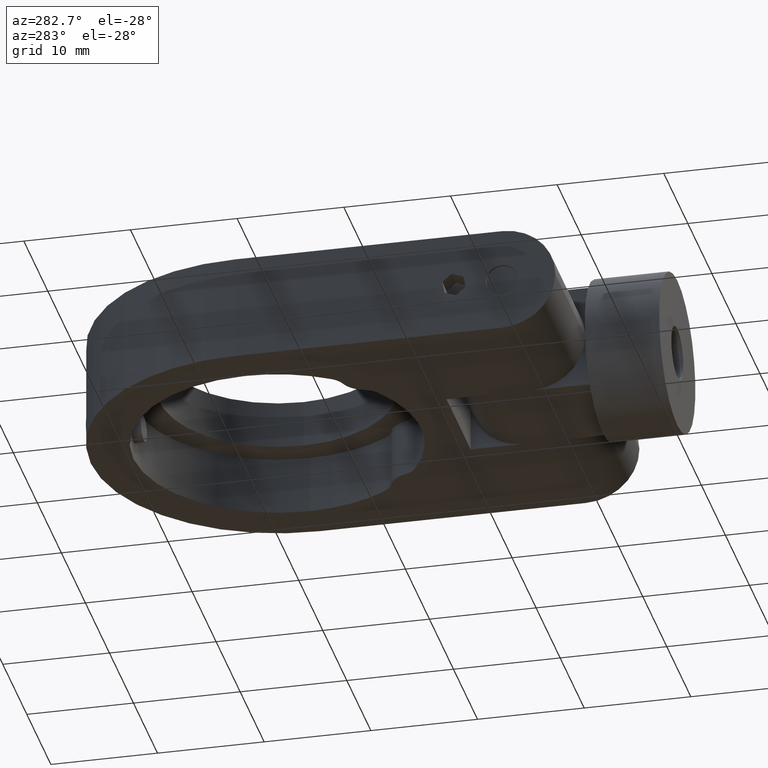
[diagram: clean part render]
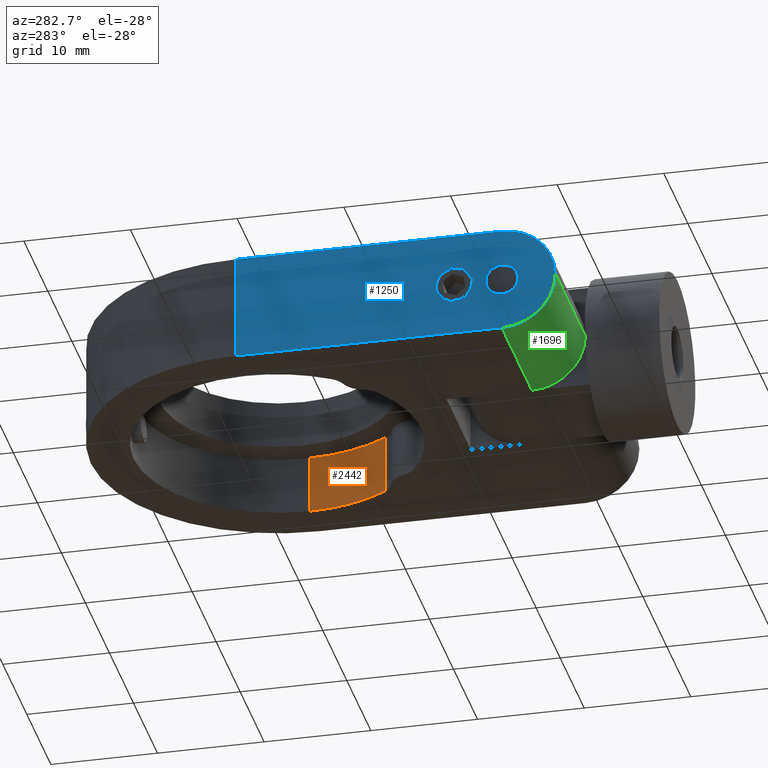
[diagram: same view with three faces highlighted in distinct colors, each labeled with its STEP entity id]
A machine part, auxiliary view with three faces highlighted in distinct colors.
Their STEP definitions:

[orange] entity #2442 — the highlighted cylindrical surface (partial cylindrical patch) has radius 13.5 mm, axis along (-0, -0, -1).
#36 = VERTEX_POINT ( 'NONE', #3137 ) ;
#47 = CARTESIAN_POINT ( 'NONE',  ( 11.14091869797605700, 29.87570130667181100, 0.5000000000000186500 ) ) ;
#256 = DIRECTION ( 'NONE',  ( -1.000000000000000000, 0.0000000000000000000, 1.044046536467522800E-016 ) ) ;
#463 = VERTEX_POINT ( 'NONE', #2863 ) ;
#523 = CIRCLE ( 'NONE', #1346, 13.50000000000000000 ) ;
#597 = VERTEX_POINT ( 'NONE', #1764 ) ;
#634 = VECTOR ( 'NONE', #3685, 1000.000000000000000 ) ;
#709 = EDGE_CURVE ( 'NONE', #597, #1086, #523, .T. ) ;
#810 = ORIENTED_EDGE ( 'NONE', *, *, #3263, .T. ) ;
#834 = LINE ( 'NONE', #2987, #634 ) ;
#955 = VECTOR ( 'NONE', #3284, 1000.000000000000000 ) ;
#1086 = VERTEX_POINT ( 'NONE', #3244 ) ;
#1165 = FACE_OUTER_BOUND ( 'NONE', #1698, .T. ) ;
#1320 = DIRECTION ( 'NONE',  ( -1.057139645054936500E-016, -1.718301073974566900E-032, -1.000000000000000000 ) ) ;
#1346 = AXIS2_PLACEMENT_3D ( 'NONE', #3092, #1320, #2438 ) ;
#1565 = CARTESIAN_POINT ( 'NONE',  ( -2.415325656008640800E-015, 37.50000000000009900, 0.5000000000000195400 ) ) ;
#1691 = ORIENTED_EDGE ( 'NONE', *, *, #3367, .T. ) ;
#1698 = EDGE_LOOP ( 'NONE', ( #2051, #1691, #3710, #810 ) ) ;
#1728 = CYLINDRICAL_SURFACE ( 'NONE', #3482, 13.50000000000000000 ) ;
#1764 = CARTESIAN_POINT ( 'NONE',  ( 13.49999999999999600, 37.50000000000010700, -4.999999999999982200 ) ) ;
#2033 = DIRECTION ( 'NONE',  ( -1.057139645054936500E-016, -1.718301073974566900E-032, -1.000000000000000000 ) ) ;
#2051 = ORIENTED_EDGE ( 'NONE', *, *, #3139, .F. ) ;
#2438 = DIRECTION ( 'NONE',  ( -1.000000000000000000, 0.0000000000000000000, 1.284980352575412700E-016 ) ) ;
#2442 = ADVANCED_FACE ( 'NONE', ( #1165 ), #1728, .F. ) ;
#2456 = DIRECTION ( 'NONE',  ( -1.057139645054936500E-016, -1.718301073974566900E-032, -1.000000000000000000 ) ) ;
#2611 = AXIS2_PLACEMENT_3D ( 'NONE', #3839, #2033, #256 ) ;
#2863 = CARTESIAN_POINT ( 'NONE',  ( 13.49999999999999800, 37.50000000000010700, 0.5000000000000181000 ) ) ;
#2987 = CARTESIAN_POINT ( 'NONE',  ( 13.49999999999999800, 37.50000000000010700, 0.5000000000000181000 ) ) ;
#3092 = CARTESIAN_POINT ( 'NONE',  ( -2.996752460788856200E-015, 37.50000000000009900, -4.999999999999980500 ) ) ;
#3134 = LINE ( 'NONE', #47, #955 ) ;
#3137 = CARTESIAN_POINT ( 'NONE',  ( 11.14091869797605700, 29.87570130667181400, 0.5000000000000186500 ) ) ;
#3139 = EDGE_CURVE ( 'NONE', #463, #36, #3772, .T. ) ;
#3244 = CARTESIAN_POINT ( 'NONE',  ( 11.14091869797605500, 29.87570130667181400, -4.999999999999982200 ) ) ;
#3263 = EDGE_CURVE ( 'NONE', #1086, #36, #3134, .T. ) ;
#3284 = DIRECTION ( 'NONE',  ( 1.057139645054936500E-016, 1.718301073974566900E-032, 1.000000000000000000 ) ) ;
#3355 = DIRECTION ( 'NONE',  ( -1.000000000000000000, 0.0000000000000000000, 1.044046536467522800E-016 ) ) ;
#3367 = EDGE_CURVE ( 'NONE', #463, #597, #834, .T. ) ;
#3482 = AXIS2_PLACEMENT_3D ( 'NONE', #1565, #2456, #3355 ) ;
#3685 = DIRECTION ( 'NONE',  ( -1.057139645054936500E-016, -1.718301073974566900E-032, -1.000000000000000000 ) ) ;
#3710 = ORIENTED_EDGE ( 'NONE', *, *, #709, .T. ) ;
#3772 = CIRCLE ( 'NONE', #2611, 13.50000000000000000 ) ;
#3839 = CARTESIAN_POINT ( 'NONE',  ( -2.415325656008640800E-015, 37.50000000000009900, 0.5000000000000195400 ) ) ;

[blue] entity #1250 — the highlighted planar face has unit normal (1, 0, -0).
#51 = LINE ( 'NONE', #3466, #2951 ) ;
#108 = VERTEX_POINT ( 'NONE', #733 ) ;
#240 = DIRECTION ( 'NONE',  ( 0.0000000000000000000, 1.000000000000000000, 0.0000000000000000000 ) ) ;
#374 = CARTESIAN_POINT ( 'NONE',  ( -17.50000000000000400, 37.50000000000009900, -4.999999999999978700 ) ) ;
#382 = LINE ( 'NONE', #2308, #3069 ) ;
#387 = VERTEX_POINT ( 'NONE', #1431 ) ;
#404 = DIRECTION ( 'NONE',  ( 0.0000000000000000000, 0.0000000000000000000, 1.000000000000000000 ) ) ;
#527 = ORIENTED_EDGE ( 'NONE', *, *, #1058, .F. ) ;
#563 = CIRCLE ( 'NONE', #1582, 1.649999999999988400 ) ;
#592 = DIRECTION ( 'NONE',  ( -1.000000000000000000, -4.689425563139111100E-017, 1.057139645054936500E-016 ) ) ;
#683 = EDGE_CURVE ( 'NONE', #2302, #1571, #2873, .T. ) ;
#685 = DIRECTION ( 'NONE',  ( -1.000000000000000000, -1.625424873631782800E-016, 1.057139645054936500E-016 ) ) ;
#715 = FACE_BOUND ( 'NONE', #2752, .T. ) ;
#733 = CARTESIAN_POINT ( 'NONE',  ( -17.50000000000000400, 37.50000000000009900, 5.000000000000022200 ) ) ;
#820 = DIRECTION ( 'NONE',  ( 0.0000000000000000000, 0.0000000000000000000, 1.000000000000000000 ) ) ;
#902 = CARTESIAN_POINT ( 'NONE',  ( -17.50000000000000400, 12.50000000000011200, 5.000000000000022200 ) ) ;
#1022 = CIRCLE ( 'NONE', #1470, 5.000000000000000000 ) ;
#1031 = DIRECTION ( 'NONE',  ( 1.000000000000000000, 4.689425563139111100E-017, -1.057139645054936500E-016 ) ) ;
#1042 = AXIS2_PLACEMENT_3D ( 'NONE', #374, #1031, #3126 ) ;
#1058 = EDGE_CURVE ( 'NONE', #1556, #1828, #3111, .T. ) ;
#1081 = EDGE_CURVE ( 'NONE', #2302, #2279, #1859, .T. ) ;
#1139 = CARTESIAN_POINT ( 'NONE',  ( -17.50000000000000400, 37.50000000000009900, -4.999999999999978700 ) ) ;
#1145 = ORIENTED_EDGE ( 'NONE', *, *, #2380, .F. ) ;
#1155 = ORIENTED_EDGE ( 'NONE', *, *, #1674, .T. ) ;
#1195 = DIRECTION ( 'NONE',  ( -1.000000000000000000, -4.689425563139111100E-017, 1.057139645054936500E-016 ) ) ;
#1250 = ADVANCED_FACE ( 'NONE', ( #3651, #715, #2275 ), #2151, .F. ) ;
#1378 = DIRECTION ( 'NONE',  ( 1.057139645054936500E-016, 1.718301073974566900E-032, 1.000000000000000000 ) ) ;
#1414 = CARTESIAN_POINT ( 'NONE',  ( -17.50000000000000400, 7.500000000000103900, 2.168404344971008900E-014 ) ) ;
#1425 = EDGE_CURVE ( 'NONE', #2279, #108, #51, .T. ) ;
#1431 = CARTESIAN_POINT ( 'NONE',  ( -17.50000000000000400, 17.00000000000010700, -1.649999999999966600 ) ) ;
#1470 = AXIS2_PLACEMENT_3D ( 'NONE', #2160, #3036, #2452 ) ;
#1519 = ORIENTED_EDGE ( 'NONE', *, *, #683, .T. ) ;
#1556 = VERTEX_POINT ( 'NONE', #1716 ) ;
#1571 = VERTEX_POINT ( 'NONE', #1414 ) ;
#1582 = AXIS2_PLACEMENT_3D ( 'NONE', #1884, #685, #404 ) ;
#1674 = EDGE_CURVE ( 'NONE', #1571, #3235, #1022, .T. ) ;
#1683 = DIRECTION ( 'NONE',  ( -4.689425563139112300E-017, 1.000000000000000000, -1.222563306441724200E-032 ) ) ;
#1716 = CARTESIAN_POINT ( 'NONE',  ( -17.50000000000000400, 14.00000000000010500, 2.168404344971008900E-014 ) ) ;
#1797 = CARTESIAN_POINT ( 'NONE',  ( -17.50000000000000400, 37.50000000000009900, -4.999999999999978700 ) ) ;
#1810 = CARTESIAN_POINT ( 'NONE',  ( -17.50000000000000400, 12.50000000000011200, -4.999999999999978700 ) ) ;
#1828 = VERTEX_POINT ( 'NONE', #2434 ) ;
#1859 = LINE ( 'NONE', #1139, #2717 ) ;
#1884 = CARTESIAN_POINT ( 'NONE',  ( -17.50000000000000400, 17.00000000000010700, 2.168404344971008900E-014 ) ) ;
#1889 = DIRECTION ( 'NONE',  ( 0.0000000000000000000, -1.000000000000000000, 8.881784197001254300E-016 ) ) ;
#2030 = CARTESIAN_POINT ( 'NONE',  ( -17.50000000000000400, 12.50000000000010500, 2.168404344971008900E-014 ) ) ;
#2103 = CIRCLE ( 'NONE', #3268, 1.499999999999999600 ) ;
#2151 = PLANE ( 'NONE',  #1042 ) ;
#2152 = ORIENTED_EDGE ( 'NONE', *, *, #3862, .F. ) ;
#2160 = CARTESIAN_POINT ( 'NONE',  ( -17.50000000000000400, 12.50000000000010500, 2.168404344971008900E-014 ) ) ;
#2165 = DIRECTION ( 'NONE',  ( -1.000000000000000000, -4.689425563139111100E-017, 1.057139645054936500E-016 ) ) ;
#2275 = FACE_OUTER_BOUND ( 'NONE', #2808, .T. ) ;
#2278 = CARTESIAN_POINT ( 'NONE',  ( -17.50000000000000400, 17.00000000000010700, 2.168404344971008900E-014 ) ) ;
#2279 = VERTEX_POINT ( 'NONE', #1797 ) ;
#2302 = VERTEX_POINT ( 'NONE', #1810 ) ;
#2308 = CARTESIAN_POINT ( 'NONE',  ( -17.50000000000000400, 37.50000000000009900, 5.000000000000022200 ) ) ;
#2380 = EDGE_CURVE ( 'NONE', #387, #3638, #563, .T. ) ;
#2429 = AXIS2_PLACEMENT_3D ( 'NONE', #3076, #2165, #1889 ) ;
#2434 = CARTESIAN_POINT ( 'NONE',  ( -17.50000000000000400, 11.00000000000010500, 2.073138404195637600E-014 ) ) ;
#2441 = ORIENTED_EDGE ( 'NONE', *, *, #1425, .F. ) ;
#2452 = DIRECTION ( 'NONE',  ( 0.0000000000000000000, -1.000000000000000000, 0.0000000000000000000 ) ) ;
#2583 = DIRECTION ( 'NONE',  ( -1.000000000000000000, -1.625424873631782800E-016, 1.057139645054936500E-016 ) ) ;
#2609 = DIRECTION ( 'NONE',  ( 0.0000000000000000000, 1.000000000000000000, 0.0000000000000000000 ) ) ;
#2626 = AXIS2_PLACEMENT_3D ( 'NONE', #2278, #2583, #820 ) ;
#2705 = EDGE_CURVE ( 'NONE', #3235, #108, #382, .T. ) ;
#2717 = VECTOR ( 'NONE', #3209, 1000.000000000000000 ) ;
#2752 = EDGE_LOOP ( 'NONE', ( #527, #2152 ) ) ;
#2808 = EDGE_LOOP ( 'NONE', ( #1519, #1155, #3809, #2441, #3095 ) ) ;
#2873 = CIRCLE ( 'NONE', #2429, 5.000000000000000000 ) ;
#2951 = VECTOR ( 'NONE', #1378, 1000.000000000000000 ) ;
#3036 = DIRECTION ( 'NONE',  ( -1.000000000000000000, -4.689425563139111100E-017, 1.057139645054936500E-016 ) ) ;
#3069 = VECTOR ( 'NONE', #1683, 1000.000000000000000 ) ;
#3076 = CARTESIAN_POINT ( 'NONE',  ( -17.50000000000000400, 12.50000000000010500, 2.168404344971008900E-014 ) ) ;
#3095 = ORIENTED_EDGE ( 'NONE', *, *, #1081, .F. ) ;
#3111 = CIRCLE ( 'NONE', #3299, 1.499999999999999600 ) ;
#3126 = DIRECTION ( 'NONE',  ( 4.689425563139111100E-017, -1.000000000000000000, 1.222563306441724200E-032 ) ) ;
#3209 = DIRECTION ( 'NONE',  ( -4.689425563139112300E-017, 1.000000000000000000, -1.222563306441724200E-032 ) ) ;
#3235 = VERTEX_POINT ( 'NONE', #902 ) ;
#3268 = AXIS2_PLACEMENT_3D ( 'NONE', #3536, #1195, #2609 ) ;
#3299 = AXIS2_PLACEMENT_3D ( 'NONE', #2030, #592, #240 ) ;
#3466 = CARTESIAN_POINT ( 'NONE',  ( -17.50000000000000400, 37.50000000000009900, -4.999999999999978700 ) ) ;
#3495 = CARTESIAN_POINT ( 'NONE',  ( -17.50000000000000400, 17.00000000000010700, 1.650000000000009900 ) ) ;
#3536 = CARTESIAN_POINT ( 'NONE',  ( -17.50000000000000400, 12.50000000000010500, 2.168404344971008900E-014 ) ) ;
#3573 = EDGE_LOOP ( 'NONE', ( #3713, #1145 ) ) ;
#3617 = CIRCLE ( 'NONE', #2626, 1.649999999999988400 ) ;
#3638 = VERTEX_POINT ( 'NONE', #3495 ) ;
#3651 = FACE_BOUND ( 'NONE', #3573, .T. ) ;
#3713 = ORIENTED_EDGE ( 'NONE', *, *, #3818, .F. ) ;
#3809 = ORIENTED_EDGE ( 'NONE', *, *, #2705, .T. ) ;
#3818 = EDGE_CURVE ( 'NONE', #3638, #387, #3617, .T. ) ;
#3862 = EDGE_CURVE ( 'NONE', #1828, #1556, #2103, .T. ) ;

[green] entity #1696 — the highlighted cylindrical surface (partial cylindrical patch) has radius 5 mm, axis along (1, -0, -0).
#71 = ORIENTED_EDGE ( 'NONE', *, *, #683, .F. ) ;
#79 = AXIS2_PLACEMENT_3D ( 'NONE', #989, #719, #705 ) ;
#683 = EDGE_CURVE ( 'NONE', #2302, #1571, #2873, .T. ) ;
#705 = DIRECTION ( 'NONE',  ( -1.150132687931106800E-016, -1.000000000000000000, 0.0000000000000000000 ) ) ;
#719 = DIRECTION ( 'NONE',  ( 1.000000000000000000, -1.150132687931107500E-016, -1.057139645054936500E-016 ) ) ;
#841 = CARTESIAN_POINT ( 'NONE',  ( -4.999999999999997300, 7.500000000000103900, 2.081668171172168500E-014 ) ) ;
#852 = LINE ( 'NONE', #2363, #1162 ) ;
#936 = CIRCLE ( 'NONE', #1187, 5.000000000000000000 ) ;
#950 = DIRECTION ( 'NONE',  ( -1.000000000000000000, 1.150132687931107500E-016, 1.057139645054936500E-016 ) ) ;
#964 = VECTOR ( 'NONE', #2614, 1000.000000000000000 ) ;
#989 = CARTESIAN_POINT ( 'NONE',  ( -5.343514358089156400E-015, 12.50000000000010500, 1.994931997373328200E-014 ) ) ;
#994 = ORIENTED_EDGE ( 'NONE', *, *, #3177, .F. ) ;
#1008 = CARTESIAN_POINT ( 'NONE',  ( -4.999999999999997300, 7.500000000000103900, 2.081668171172168500E-014 ) ) ;
#1162 = VECTOR ( 'NONE', #950, 1000.000000000000000 ) ;
#1187 = AXIS2_PLACEMENT_3D ( 'NONE', #1282, #2139, #3013 ) ;
#1282 = CARTESIAN_POINT ( 'NONE',  ( -4.999999999999998200, 12.50000000000010500, 2.081668171172168500E-014 ) ) ;
#1414 = CARTESIAN_POINT ( 'NONE',  ( -17.50000000000000400, 7.500000000000103900, 2.168404344971008900E-014 ) ) ;
#1571 = VERTEX_POINT ( 'NONE', #1414 ) ;
#1572 = EDGE_CURVE ( 'NONE', #2983, #2302, #852, .T. ) ;
#1696 = ADVANCED_FACE ( 'NONE', ( #3494 ), #2665, .T. ) ;
#1810 = CARTESIAN_POINT ( 'NONE',  ( -17.50000000000000400, 12.50000000000011200, -4.999999999999978700 ) ) ;
#1889 = DIRECTION ( 'NONE',  ( 0.0000000000000000000, -1.000000000000000000, 8.881784197001254300E-016 ) ) ;
#2139 = DIRECTION ( 'NONE',  ( 1.000000000000000000, 1.625424873631782800E-016, -1.057139645054936500E-016 ) ) ;
#2165 = DIRECTION ( 'NONE',  ( -1.000000000000000000, -4.689425563139111100E-017, 1.057139645054936500E-016 ) ) ;
#2302 = VERTEX_POINT ( 'NONE', #1810 ) ;
#2363 = CARTESIAN_POINT ( 'NONE',  ( -17.50000000000000400, 12.50000000000010500, -4.999999999999978700 ) ) ;
#2378 = EDGE_CURVE ( 'NONE', #2502, #2983, #936, .T. ) ;
#2429 = AXIS2_PLACEMENT_3D ( 'NONE', #3076, #2165, #1889 ) ;
#2502 = VERTEX_POINT ( 'NONE', #1008 ) ;
#2518 = LINE ( 'NONE', #841, #964 ) ;
#2614 = DIRECTION ( 'NONE',  ( 1.000000000000000000, -1.150132687931107500E-016, -1.057139645054936500E-016 ) ) ;
#2665 = CYLINDRICAL_SURFACE ( 'NONE', #79, 5.000000000000000000 ) ;
#2873 = CIRCLE ( 'NONE', #2429, 5.000000000000000000 ) ;
#2975 = EDGE_LOOP ( 'NONE', ( #3187, #3461, #994, #71 ) ) ;
#2983 = VERTEX_POINT ( 'NONE', #3459 ) ;
#3013 = DIRECTION ( 'NONE',  ( 1.734723475976807100E-016, 0.0000000000000000000, 1.000000000000000000 ) ) ;
#3076 = CARTESIAN_POINT ( 'NONE',  ( -17.50000000000000400, 12.50000000000010500, 2.168404344971008900E-014 ) ) ;
#3177 = EDGE_CURVE ( 'NONE', #1571, #2502, #2518, .T. ) ;
#3187 = ORIENTED_EDGE ( 'NONE', *, *, #1572, .F. ) ;
#3459 = CARTESIAN_POINT ( 'NONE',  ( -4.999999999999998200, 12.50000000000010500, -4.999999999999980500 ) ) ;
#3461 = ORIENTED_EDGE ( 'NONE', *, *, #2378, .F. ) ;
#3494 = FACE_OUTER_BOUND ( 'NONE', #2975, .T. ) ;